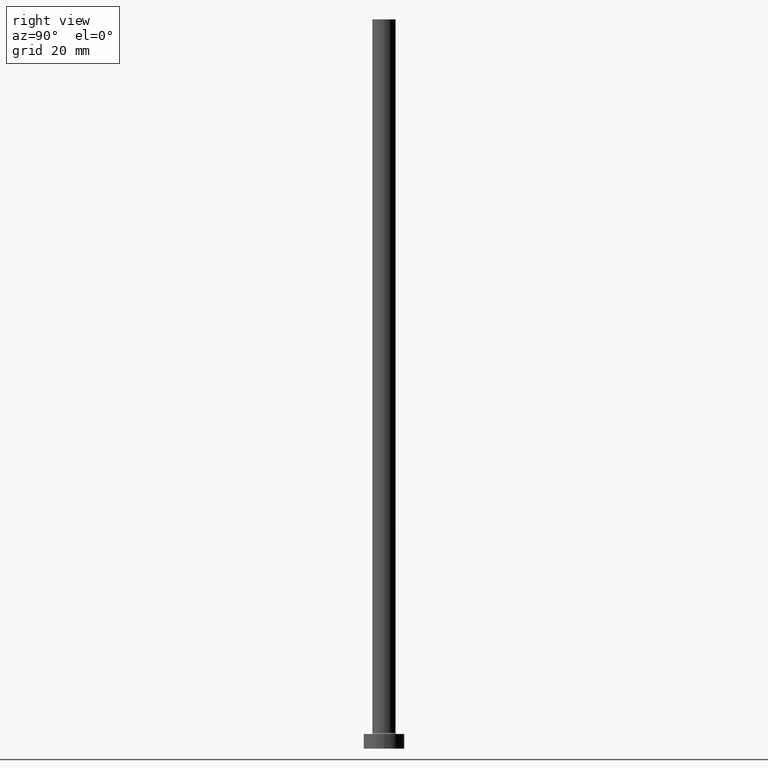
[diagram: clean part render]
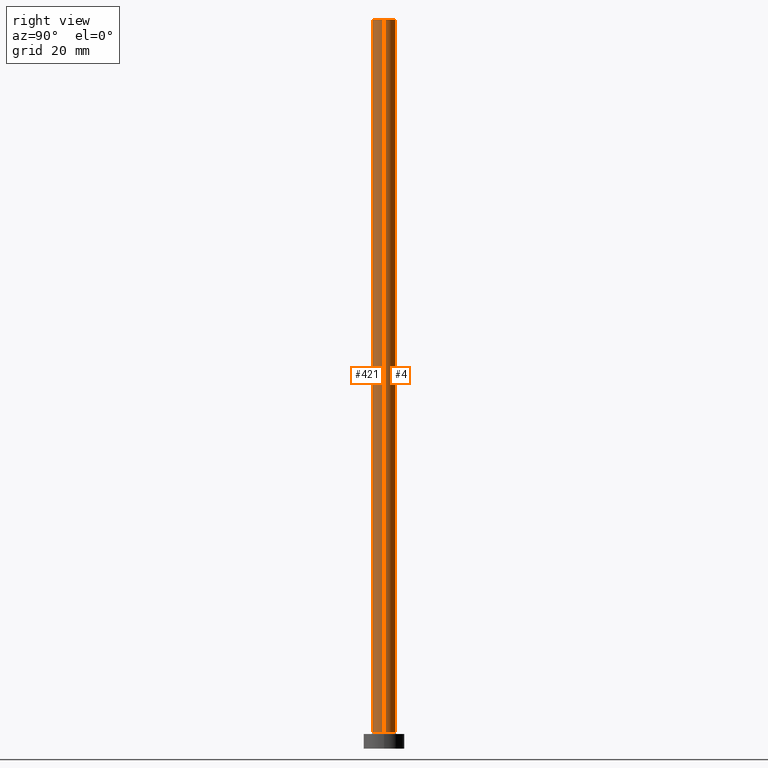
[diagram: same view with one multi-face feature highlighted, each face labeled with its STEP entity id]
A machine part, right view. The highlighted faces form ONE feature: a constant-radius fillet chain: 2 tangent blend faces with common blend radius 4 mm. The faces share edges in the B-rep.
Their STEP definitions:
[1] entity #421 (Cylinder):
#7 = VERTEX_POINT ( 'NONE', #276 ) ;
#8 = CARTESIAN_POINT ( 'NONE',  ( 0.000000000000000000, 0.000000000000000000, 5.500000000000005329 ) ) ;
#11 = EDGE_CURVE ( 'NONE', #65, #7, #426, .T. ) ;
#21 = VECTOR ( 'NONE', #436, 1000.000000000000000 ) ;
#28 = CARTESIAN_POINT ( 'NONE',  ( 0.000000000000000000, 0.000000000000000000, 250.0000000000000000 ) ) ;
#60 = DIRECTION ( 'NONE',  ( 1.000000000000000000, 0.000000000000000000, 0.000000000000000000 ) ) ;
#64 = CYLINDRICAL_SURFACE ( 'NONE', #425, 4.000000000000000000 ) ;
#65 = VERTEX_POINT ( 'NONE', #249 ) ;
#73 = CIRCLE ( 'NONE', #291, 4.000000000000000000 ) ;
#89 = ORIENTED_EDGE ( 'NONE', *, *, #424, .F. ) ;
#97 = DIRECTION ( 'NONE',  ( 0.000000000000000000, 0.000000000000000000, 1.000000000000000000 ) ) ;
#99 = CARTESIAN_POINT ( 'NONE',  ( 4.000000000000000000, 4.898587196589412829E-16, 250.0000000000000000 ) ) ;
#125 = ORIENTED_EDGE ( 'NONE', *, *, #310, .T. ) ;
#161 = EDGE_CURVE ( 'NONE', #65, #309, #169, .T. ) ;
#162 = DIRECTION ( 'NONE',  ( -1.000000000000000000, 0.000000000000000000, 0.000000000000000000 ) ) ;
#169 = LINE ( 'NONE', #289, #21 ) ;
#170 = ORIENTED_EDGE ( 'NONE', *, *, #11, .F. ) ;
#192 = DIRECTION ( 'NONE',  ( 0.000000000000000000, 0.000000000000000000, 1.000000000000000000 ) ) ;
#200 = VECTOR ( 'NONE', #317, 1000.000000000000000 ) ;
#249 = CARTESIAN_POINT ( 'NONE',  ( -4.000000000000000000, 0.000000000000000000, 250.0000000000000000 ) ) ;
#260 = DIRECTION ( 'NONE',  ( 1.000000000000000000, 0.000000000000000000, 0.000000000000000000 ) ) ;
#262 = AXIS2_PLACEMENT_3D ( 'NONE', #420, #97, #60 ) ;
#267 = EDGE_LOOP ( 'NONE', ( #89, #170, #306, #125 ) ) ;
#272 = CARTESIAN_POINT ( 'NONE',  ( 4.000000000000000000, 4.898587196589412829E-16, 5.500000000000005329 ) ) ;
#276 = CARTESIAN_POINT ( 'NONE',  ( 4.000000000000000000, 4.898587196589412829E-16, 250.0000000000000000 ) ) ;
#289 = CARTESIAN_POINT ( 'NONE',  ( -4.000000000000000000, 0.000000000000000000, 250.0000000000000000 ) ) ;
#291 = AXIS2_PLACEMENT_3D ( 'NONE', #8, #192, #260 ) ;
#306 = ORIENTED_EDGE ( 'NONE', *, *, #161, .T. ) ;
#309 = VERTEX_POINT ( 'NONE', #412 ) ;
#310 = EDGE_CURVE ( 'NONE', #309, #369, #73, .T. ) ;
#317 = DIRECTION ( 'NONE',  ( -0.000000000000000000, -0.000000000000000000, -1.000000000000000000 ) ) ;
#352 = DIRECTION ( 'NONE',  ( -0.000000000000000000, -0.000000000000000000, -1.000000000000000000 ) ) ;
#369 = VERTEX_POINT ( 'NONE', #272 ) ;
#381 = FACE_OUTER_BOUND ( 'NONE', #267, .T. ) ;
#412 = CARTESIAN_POINT ( 'NONE',  ( -4.000000000000000000, 0.000000000000000000, 5.500000000000005329 ) ) ;
#420 = CARTESIAN_POINT ( 'NONE',  ( 0.000000000000000000, 0.000000000000000000, 250.0000000000000000 ) ) ;
#421 = ADVANCED_FACE ( 'NONE', ( #381 ), #64, .T. ) ;
#424 = EDGE_CURVE ( 'NONE', #7, #369, #453, .T. ) ;
#425 = AXIS2_PLACEMENT_3D ( 'NONE', #28, #352, #162 ) ;
#426 = CIRCLE ( 'NONE', #262, 4.000000000000000000 ) ;
#436 = DIRECTION ( 'NONE',  ( -0.000000000000000000, -0.000000000000000000, -1.000000000000000000 ) ) ;
#453 = LINE ( 'NONE', #99, #200 ) ;
[2] entity #4 (Cylinder):
#2 = CARTESIAN_POINT ( 'NONE',  ( 0.000000000000000000, 0.000000000000000000, 250.0000000000000000 ) ) ;
#4 = ADVANCED_FACE ( 'NONE', ( #84 ), #351, .T. ) ;
#7 = VERTEX_POINT ( 'NONE', #276 ) ;
#21 = VECTOR ( 'NONE', #436, 1000.000000000000000 ) ;
#23 = EDGE_LOOP ( 'NONE', ( #177, #112, #259, #116 ) ) ;
#27 = AXIS2_PLACEMENT_3D ( 'NONE', #128, #378, #451 ) ;
#49 = CARTESIAN_POINT ( 'NONE',  ( 0.000000000000000000, 0.000000000000000000, 5.500000000000005329 ) ) ;
#63 = AXIS2_PLACEMENT_3D ( 'NONE', #2, #141, #105 ) ;
#65 = VERTEX_POINT ( 'NONE', #249 ) ;
#84 = FACE_OUTER_BOUND ( 'NONE', #23, .T. ) ;
#99 = CARTESIAN_POINT ( 'NONE',  ( 4.000000000000000000, 4.898587196589412829E-16, 250.0000000000000000 ) ) ;
#105 = DIRECTION ( 'NONE',  ( 1.000000000000000000, 0.000000000000000000, 0.000000000000000000 ) ) ;
#112 = ORIENTED_EDGE ( 'NONE', *, *, #424, .T. ) ;
#116 = ORIENTED_EDGE ( 'NONE', *, *, #161, .F. ) ;
#128 = CARTESIAN_POINT ( 'NONE',  ( 0.000000000000000000, 0.000000000000000000, 250.0000000000000000 ) ) ;
#141 = DIRECTION ( 'NONE',  ( 0.000000000000000000, 0.000000000000000000, 1.000000000000000000 ) ) ;
#154 = DIRECTION ( 'NONE',  ( 1.000000000000000000, 0.000000000000000000, 0.000000000000000000 ) ) ;
#155 = CIRCLE ( 'NONE', #63, 4.000000000000000000 ) ;
#161 = EDGE_CURVE ( 'NONE', #65, #309, #169, .T. ) ;
#169 = LINE ( 'NONE', #289, #21 ) ;
#177 = ORIENTED_EDGE ( 'NONE', *, *, #221, .F. ) ;
#200 = VECTOR ( 'NONE', #317, 1000.000000000000000 ) ;
#221 = EDGE_CURVE ( 'NONE', #7, #65, #155, .T. ) ;
#249 = CARTESIAN_POINT ( 'NONE',  ( -4.000000000000000000, 0.000000000000000000, 250.0000000000000000 ) ) ;
#254 = AXIS2_PLACEMENT_3D ( 'NONE', #49, #439, #154 ) ;
#259 = ORIENTED_EDGE ( 'NONE', *, *, #316, .T. ) ;
#272 = CARTESIAN_POINT ( 'NONE',  ( 4.000000000000000000, 4.898587196589412829E-16, 5.500000000000005329 ) ) ;
#276 = CARTESIAN_POINT ( 'NONE',  ( 4.000000000000000000, 4.898587196589412829E-16, 250.0000000000000000 ) ) ;
#289 = CARTESIAN_POINT ( 'NONE',  ( -4.000000000000000000, 0.000000000000000000, 250.0000000000000000 ) ) ;
#309 = VERTEX_POINT ( 'NONE', #412 ) ;
#316 = EDGE_CURVE ( 'NONE', #369, #309, #365, .T. ) ;
#317 = DIRECTION ( 'NONE',  ( -0.000000000000000000, -0.000000000000000000, -1.000000000000000000 ) ) ;
#351 = CYLINDRICAL_SURFACE ( 'NONE', #27, 4.000000000000000000 ) ;
#365 = CIRCLE ( 'NONE', #254, 4.000000000000000000 ) ;
#369 = VERTEX_POINT ( 'NONE', #272 ) ;
#378 = DIRECTION ( 'NONE',  ( -0.000000000000000000, -0.000000000000000000, -1.000000000000000000 ) ) ;
#412 = CARTESIAN_POINT ( 'NONE',  ( -4.000000000000000000, 0.000000000000000000, 5.500000000000005329 ) ) ;
#424 = EDGE_CURVE ( 'NONE', #7, #369, #453, .T. ) ;
#436 = DIRECTION ( 'NONE',  ( -0.000000000000000000, -0.000000000000000000, -1.000000000000000000 ) ) ;
#439 = DIRECTION ( 'NONE',  ( 0.000000000000000000, 0.000000000000000000, 1.000000000000000000 ) ) ;
#451 = DIRECTION ( 'NONE',  ( -1.000000000000000000, 0.000000000000000000, 0.000000000000000000 ) ) ;
#453 = LINE ( 'NONE', #99, #200 ) ;